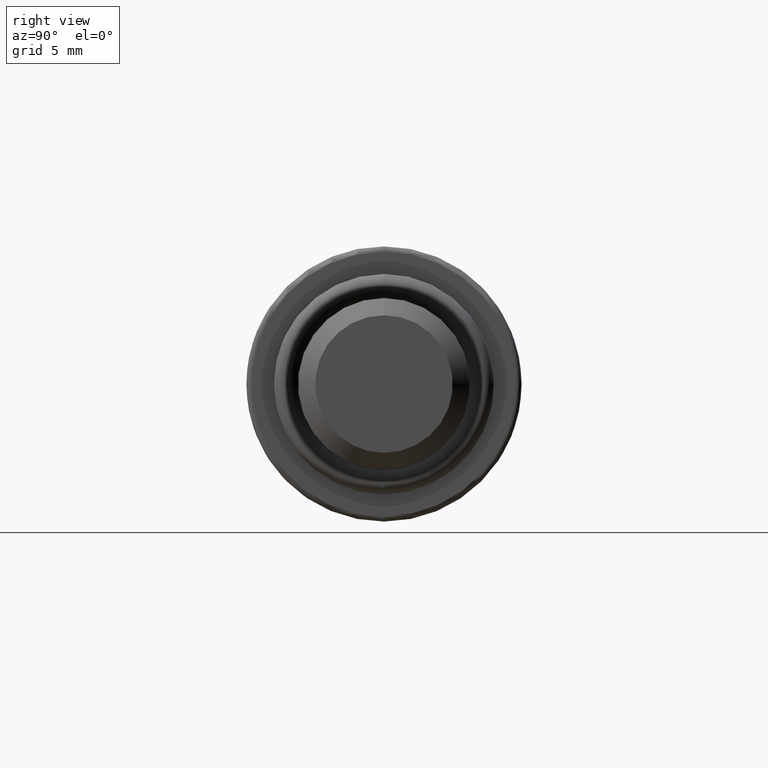
[diagram: clean part render]
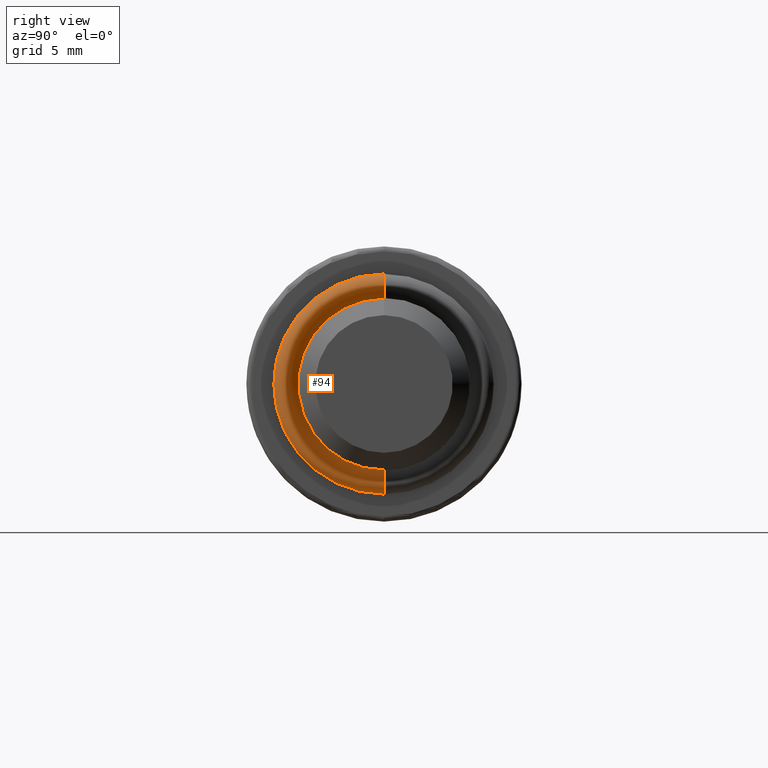
[diagram: same view with one face highlighted and labeled with its STEP entity id]
A machine part, right view. The second image highlights one B-rep face of the part: STEP entity #94.
In plain terms, the highlighted toroidal blend (fillet) surface has major radius 5.7 mm and minor (blend) radius 0.7 mm.
Its self-contained STEP definition (entity closure, byte-faithful):
#38 = AXIS2_PLACEMENT_3D ( 'NONE', #136, #193, #445 ) ;
#83 = AXIS2_PLACEMENT_3D ( 'NONE', #627, #612, #185 ) ;
#94 = ADVANCED_FACE ( 'NONE', ( #309 ), #606, .T. ) ;
#100 = DIRECTION ( 'NONE',  ( 1.000000000000000000, -0.0000000000000000000, -0.0000000000000000000 ) ) ;
#103 = EDGE_CURVE ( 'NONE', #793, #279, #167, .T. ) ;
#104 = CIRCLE ( 'NONE', #261, 0.7000000000000000700 ) ;
#136 = CARTESIAN_POINT ( 'NONE',  ( -0.2000000000000000900, 0.0000000000000000000, 0.0000000000000000000 ) ) ;
#138 = CIRCLE ( 'NONE', #810, 5.000000000000000000 ) ;
#167 = CIRCLE ( 'NONE', #83, 0.7000000000000000700 ) ;
#185 = DIRECTION ( 'NONE',  ( 0.0000000000000000000, 0.0000000000000000000, -1.000000000000000000 ) ) ;
#193 = DIRECTION ( 'NONE',  ( 1.000000000000000000, -0.0000000000000000000, -0.0000000000000000000 ) ) ;
#233 = EDGE_CURVE ( 'NONE', #570, #793, #545, .T. ) ;
#256 = ORIENTED_EDGE ( 'NONE', *, *, #703, .F. ) ;
#261 = AXIS2_PLACEMENT_3D ( 'NONE', #282, #718, #337 ) ;
#279 = VERTEX_POINT ( 'NONE', #684 ) ;
#282 = CARTESIAN_POINT ( 'NONE',  ( -0.2000000000000000900, 6.980486755139913100E-016, 5.700000000000000200 ) ) ;
#309 = FACE_OUTER_BOUND ( 'NONE', #486, .T. ) ;
#337 = DIRECTION ( 'NONE',  ( 0.0000000000000000000, 1.224646799147353500E-016, 1.000000000000000000 ) ) ;
#385 = CARTESIAN_POINT ( 'NONE',  ( -0.2000000000000001800, 6.123233995736766300E-016, 5.000000000000000000 ) ) ;
#430 = DIRECTION ( 'NONE',  ( 0.0000000000000000000, 0.0000000000000000000, -1.000000000000000000 ) ) ;
#445 = DIRECTION ( 'NONE',  ( 0.0000000000000000000, 0.0000000000000000000, -1.000000000000000000 ) ) ;
#461 = ORIENTED_EDGE ( 'NONE', *, *, #233, .T. ) ;
#475 = CARTESIAN_POINT ( 'NONE',  ( -0.2000000000000001800, 0.0000000000000000000, 0.0000000000000000000 ) ) ;
#477 = VERTEX_POINT ( 'NONE', #385 ) ;
#486 = EDGE_LOOP ( 'NONE', ( #708, #461, #608, #256 ) ) ;
#489 = CARTESIAN_POINT ( 'NONE',  ( -0.2000000000000000900, 0.0000000000000000000, 0.0000000000000000000 ) ) ;
#540 = DIRECTION ( 'NONE',  ( 0.0000000000000000000, 0.0000000000000000000, -1.000000000000000000 ) ) ;
#545 = CIRCLE ( 'NONE', #585, 6.400000000000000400 ) ;
#570 = VERTEX_POINT ( 'NONE', #715 ) ;
#582 = EDGE_CURVE ( 'NONE', #570, #477, #104, .T. ) ;
#585 = AXIS2_PLACEMENT_3D ( 'NONE', #489, #809, #430 ) ;
#606 = TOROIDAL_SURFACE ( 'NONE', #38, 5.700000000000000200, 0.6999999999999997300 ) ;
#608 = ORIENTED_EDGE ( 'NONE', *, *, #103, .T. ) ;
#612 = DIRECTION ( 'NONE',  ( -0.0000000000000000000, -1.000000000000000000, -0.0000000000000000000 ) ) ;
#627 = CARTESIAN_POINT ( 'NONE',  ( -0.2000000000000000900, 0.0000000000000000000, -5.700000000000000200 ) ) ;
#684 = CARTESIAN_POINT ( 'NONE',  ( -0.2000000000000001800, 0.0000000000000000000, -5.000000000000000000 ) ) ;
#703 = EDGE_CURVE ( 'NONE', #477, #279, #138, .T. ) ;
#708 = ORIENTED_EDGE ( 'NONE', *, *, #582, .F. ) ;
#715 = CARTESIAN_POINT ( 'NONE',  ( -0.2000000000000000900, 7.837739514543060900E-016, 6.400000000000000400 ) ) ;
#718 = DIRECTION ( 'NONE',  ( 0.0000000000000000000, 1.000000000000000000, -1.224646799147353200E-016 ) ) ;
#793 = VERTEX_POINT ( 'NONE', #801 ) ;
#801 = CARTESIAN_POINT ( 'NONE',  ( -0.2000000000000000900, 0.0000000000000000000, -6.400000000000000400 ) ) ;
#809 = DIRECTION ( 'NONE',  ( 1.000000000000000000, -0.0000000000000000000, -0.0000000000000000000 ) ) ;
#810 = AXIS2_PLACEMENT_3D ( 'NONE', #475, #100, #540 ) ;